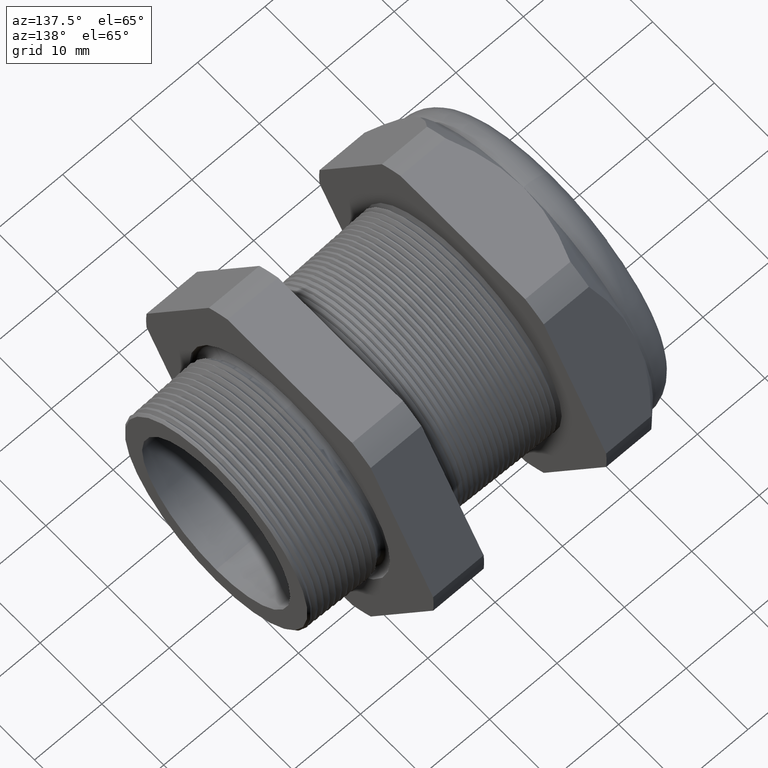
[diagram: clean part render]
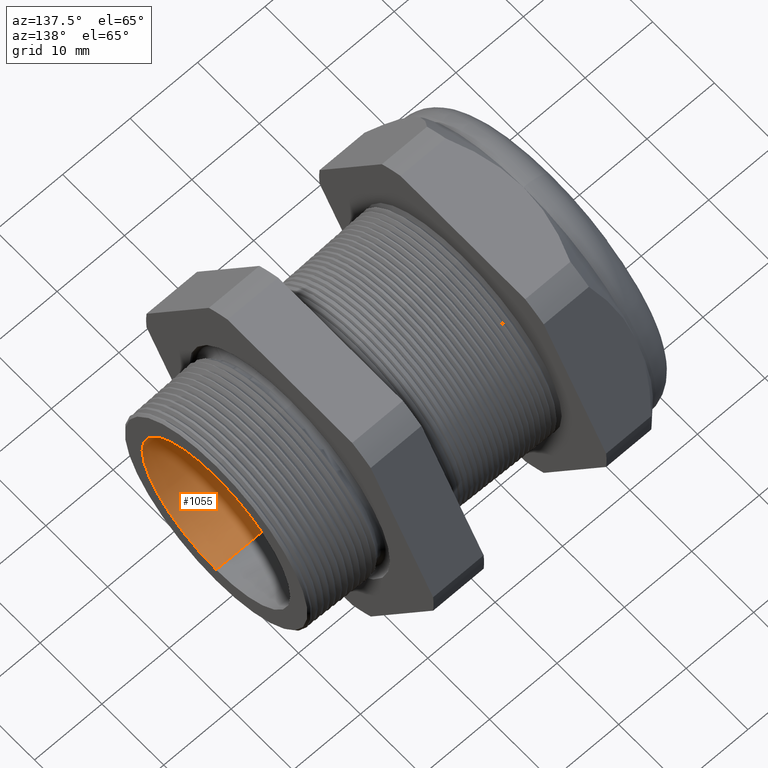
[diagram: same view with one face highlighted and labeled with its STEP entity id]
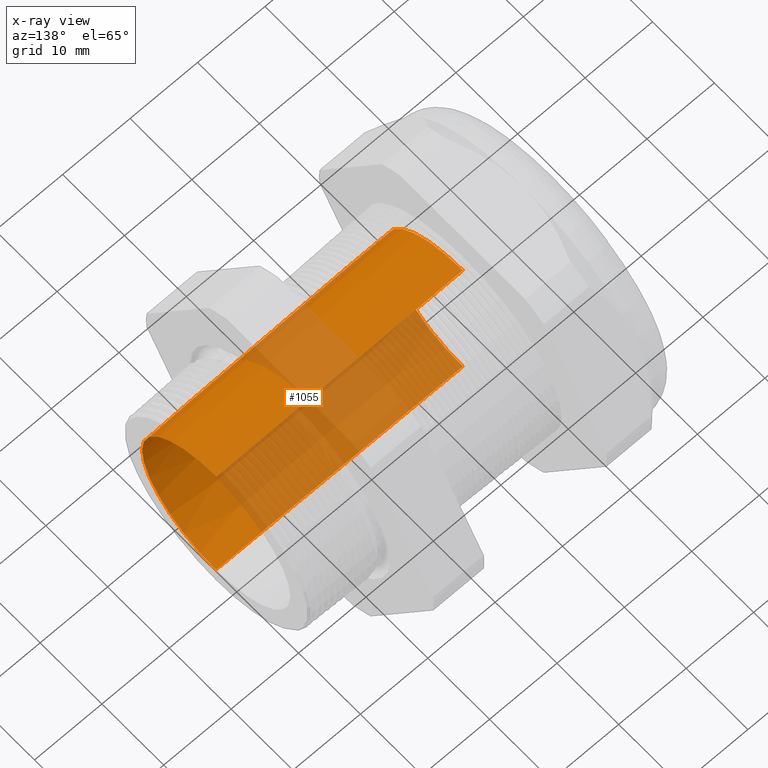
[diagram: x-ray of the same camera — body ghosted, the highlighted face saturated]
A machine part, auxiliary view. The second image highlights one B-rep face of the part: STEP entity #1055.
The next image is the same camera in x-ray: the body ghosted, the highlighted face saturated — about 48% of this face is hidden behind the body in this view.
In plain terms, the highlighted conical surface has half-angle 0.705 deg.
Its self-contained STEP definition (entity closure, byte-faithful):
#1050 = VERTEX_POINT ( 'NONE', #4218 ) ;
#1055 = ADVANCED_FACE ( 'NONE', ( #4273 ), #4271, .F. ) ;
#1056 = EDGE_CURVE ( 'NONE', #1061, #1059, #4266, .T. ) ;
#1057 = ORIENTED_EDGE ( 'NONE', *, *, #1056, .T. ) ;
#1058 = EDGE_LOOP ( 'NONE', ( #1057, #1060, #1064, #1065 ) ) ;
#1059 = VERTEX_POINT ( 'NONE', #4262 ) ;
#1060 = ORIENTED_EDGE ( 'NONE', *, *, #1062, .T. ) ;
#1061 = VERTEX_POINT ( 'NONE', #4261 ) ;
#1062 = EDGE_CURVE ( 'NONE', #1059, #1050, #4260, .T. ) ;
#1063 = EDGE_CURVE ( 'NONE', #1078, #1050, #4255, .T. ) ;
#1064 = ORIENTED_EDGE ( 'NONE', *, *, #1063, .F. ) ;
#1065 = ORIENTED_EDGE ( 'NONE', *, *, #1067, .F. ) ;
#1067 = EDGE_CURVE ( 'NONE', #1061, #1078, #4250, .T. ) ;
#1078 = VERTEX_POINT ( 'NONE', #4293 ) ;
#4218 = CARTESIAN_POINT ( 'NONE',  ( -1.320314960629921200, 6.000769315822029800E-017, -0.4899999999999999900 ) ) ;
#4249 = CARTESIAN_POINT ( 'NONE',  ( -1.320314960629921200, 0.0000000000000000000, 0.4899999999999999900 ) ) ;
#4250 = LINE ( 'NONE', #4249, #4314 ) ;
#4251 = DIRECTION ( 'NONE',  ( 0.0000000000000000000, 0.0000000000000000000, -1.000000000000000000 ) ) ;
#4252 = DIRECTION ( 'NONE',  ( 1.000000000000000000, 0.0000000000000000000, 0.0000000000000000000 ) ) ;
#4253 = CARTESIAN_POINT ( 'NONE',  ( -1.320314960629921200, 0.0000000000000000000, 0.0000000000000000000 ) ) ;
#4254 = AXIS2_PLACEMENT_3D ( 'NONE', #4253, #4252, #4251 ) ;
#4255 = CIRCLE ( 'NONE', #4254, 0.4899999999999999900 ) ;
#4257 = DIRECTION ( 'NONE',  ( -0.9999243627234416500, 1.506210180493738900E-018, -0.01229913948693142600 ) ) ;
#4258 = VECTOR ( 'NONE', #4257, 39.37007874015748900 ) ;
#4259 = CARTESIAN_POINT ( 'NONE',  ( -1.320314960629921200, 6.000769315822029800E-017, -0.4899999999999999900 ) ) ;
#4260 = LINE ( 'NONE', #4259, #4258 ) ;
#4261 = CARTESIAN_POINT ( 'NONE',  ( 0.1200000000000000400, 0.0000000000000000000, 0.4722840254060285400 ) ) ;
#4262 = CARTESIAN_POINT ( 'NONE',  ( 0.1200000000000000400, 5.892290257920615800E-017, -0.4722840254060285400 ) ) ;
#4263 = DIRECTION ( 'NONE',  ( 0.0000000000000000000, 0.0000000000000000000, -1.000000000000000000 ) ) ;
#4264 = DIRECTION ( 'NONE',  ( 1.000000000000000000, 0.0000000000000000000, 0.0000000000000000000 ) ) ;
#4265 = AXIS2_PLACEMENT_3D ( 'NONE', #4272, #4264, #4263 ) ;
#4266 = CIRCLE ( 'NONE', #4265, 0.4722840254060285400 ) ;
#4267 = DIRECTION ( 'NONE',  ( 0.0000000000000000000, 0.0000000000000000000, 1.000000000000000000 ) ) ;
#4268 = DIRECTION ( 'NONE',  ( -1.000000000000000000, 0.0000000000000000000, 0.0000000000000000000 ) ) ;
#4269 = CARTESIAN_POINT ( 'NONE',  ( -1.320314960629921200, 0.0000000000000000000, 0.0000000000000000000 ) ) ;
#4270 = AXIS2_PLACEMENT_3D ( 'NONE', #4269, #4268, #4267 ) ;
#4271 = CONICAL_SURFACE ( 'NONE', #4270, 0.4899999999999999900, 0.01229944958745177900 ) ;
#4272 = CARTESIAN_POINT ( 'NONE',  ( 0.1200000000000000400, 0.0000000000000000000, 0.0000000000000000000 ) ) ;
#4273 = FACE_OUTER_BOUND ( 'NONE', #1058, .T. ) ;
#4293 = CARTESIAN_POINT ( 'NONE',  ( -1.320314960629921200, 0.0000000000000000000, 0.4899999999999999900 ) ) ;
#4313 = DIRECTION ( 'NONE',  ( -0.9999243627234416500, 0.0000000000000000000, 0.01229913948693142600 ) ) ;
#4314 = VECTOR ( 'NONE', #4313, 39.37007874015748900 ) ;